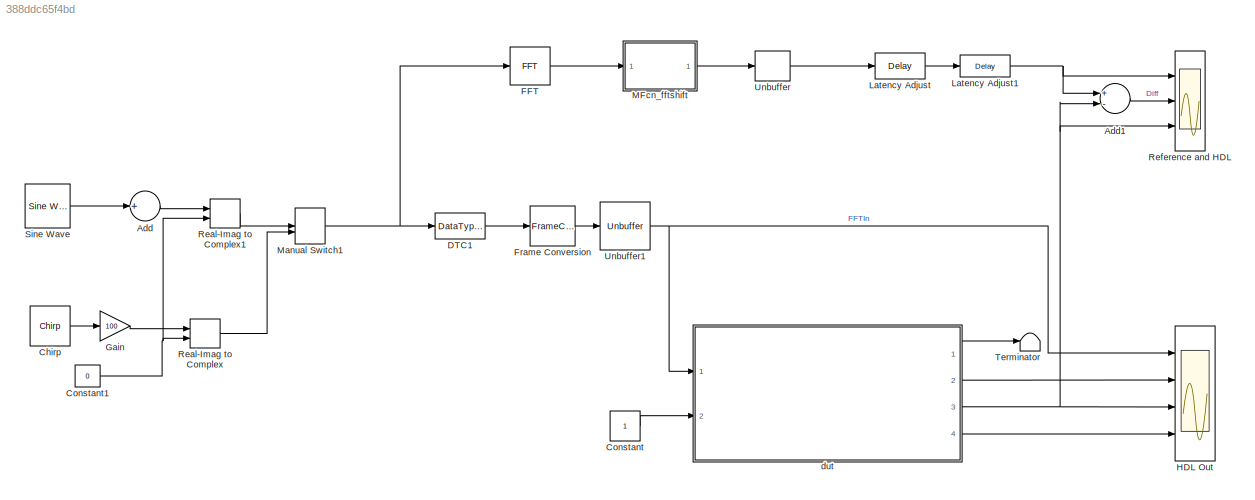
MODEL slx_388ddc65f4bd
KIND model
CONFIG AbsTol = auto
CONFIG FixedStep = auto
CONFIG MaxStep = auto
CONFIG MinStep = auto
CONFIG PreLoadFcn = paramFFTShift
CONFIG RelTol = 1e-3
CONFIG SampleTimeConstraint = Unconstrained
CONFIG Solver = FixedStepDiscrete
CONFIG SolverMode = SingleTasking
CONFIG SolverName = FixedStepDiscrete
CONFIG StartTime = 0.0
CONFIG StopTime = simTime
BLOCK [Sum] Add
  CollapseDim = 2
  CollapseMode = Specified dimension
  InputSameDT = off
  Inputs = +
  OutDataTypeStr = Inherit: Inherit via internal rule
  Ports = [1, 1]
  SaturateOnIntegerOverflow = off
BLOCK [Sum] Add1
  InputSameDT = off
  Inputs = +-
  OutDataTypeStr = Inherit: Inherit via internal rule
  Ports = [2, 1]
  SaturateOnIntegerOverflow = off
BLOCK [Reference] Chirp  REF=dspsrcs4/Chirp
  Ports = [0, 1]
  SourceBlock = dspsrcs4/Chirp
  SourceType = Chirp
BLOCK [Constant] Constant
  OutDataTypeStr = boolean
  SampleTime = 1/sr
BLOCK [Constant] Constant1
  OutDataTypeStr = Inherit: Inherit via back propagation
  SampleTime = -1
  Value = 0
BLOCK [DataTypeConversion] DTC1
  OutDataTypeStr = fixdt(1,16,2)
  RndMeth = Nearest
BLOCK [Reference] FFT  REF=dspxfrm3/FFT
  Ports = [1, 1]
  SourceBlock = dspxfrm3/FFT
  SourceType = FFT
BLOCK [FrameConversion] Frame Conversion
  InheritSamplingMode = off
  Ports = [1, 1]
BLOCK [Gain] Gain
  Gain = 100
  OutDataTypeStr = Inherit: Inherit via internal rule
  ParamDataTypeStr = Inherit: Inherit via internal rule
  SaturateOnIntegerOverflow = off
BLOCK [Scope] HDL Out
  DefaultConfigurationName = spbscopes.TimeScopeBlockCfg
  NumInputPorts = 4
  Ports = [4]
  ScopeSpecificationString = spbscopes.TimeScopeBlockCfg('CurrentConfiguration', extmgr.ConfigurationSet(extmgr.Configuration('Core','General UI',true),extmgr.Configuration('Core','Source UI',true),extmgr.Configuration('Sources','WiredSimulink',true,'PointsPerSignal',50000),extmgr.Configuration('Visuals','Time Domain',true,'DisplayLayoutDimensions',[4 1],'DisplayPropertyDefaults',struct('YLabelReal','Amplitude','AxesColor',[0...<+3571ch>
  UserDataPersistent = on
BLOCK [Delay] Latency Adjust
  DelayLength = fftLatency
  InputPortMap = u0
  Ports = [1, 1]
BLOCK [Delay] Latency Adjust1
  DelayLength = N/2+2
  InputPortMap = u0
  Ports = [1, 1]
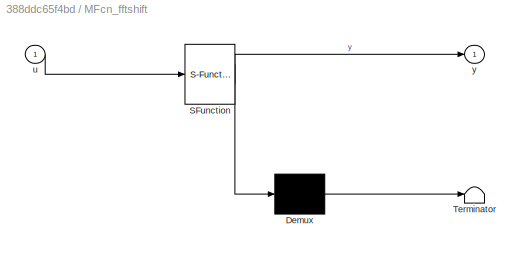
BLOCK [SubSystem] MFcn_fftshift
  ErrorFcn = Stateflow.Translate.translate
  PermitHierarchicalResolution = ExplicitOnly
  Ports = [1, 1]
  RequestExecContextInheritance = off
  SFBlockType = MATLAB Function
  TreatAsAtomicUnit = on
  Variant = off
BLOCK [Demux] MFcn_fftshift/ Demux 
  Outputs = 1
  Ports = [1, 1]
BLOCK [S-Function] MFcn_fftshift/ SFunction 
  EnableBusSupport = on
  FunctionName = sf_sfun
  PortCounts = [1 2]
  Ports = [1, 2]
  SFunctionDeploymentMode = off
  Tag = Stateflow S-Function sla_FFT 6
BLOCK [Terminator] MFcn_fftshift/ Terminator 
BLOCK [Inport] MFcn_fftshift/u
  IconDisplay = Port number
BLOCK [Outport] MFcn_fftshift/y
  IconDisplay = Port number
BLOCK [ManualSwitch] Manual Switch1
BLOCK [RealImagToComplex] Real-Imag to Complex
  Ports = [2, 1]
BLOCK [RealImagToComplex] Real-Imag to Complex1
  Ports = [2, 1]
BLOCK [Scope] Reference and HDL
  DefaultConfigurationName = spbscopes.TimeScopeBlockCfg
  NumInputPorts = 3
  Ports = [3]
  ScopeSpecificationString = spbscopes.TimeScopeBlockCfg('CurrentConfiguration', extmgr.ConfigurationSet(extmgr.Configuration('Core','General UI',true),extmgr.Configuration('Core','Source UI',true),extmgr.Configuration('Sources','WiredSimulink',true,'PointsPerSignal',500000,'DataLoggingVariableName','ScopeData1'),extmgr.Configuration('Visuals','Time Domain',true,'DisplayLayoutDimensions',[3 1],'DisplayPropertyDefaults',struct...<+2915ch>
  UserDataPersistent = on
BLOCK [Reference] Sine Wave  REF=dspsrcs4/Sine Wave
  Ports = [0, 1]
  SourceBlock = dspsrcs4/Sine Wave
  SourceType = Sine Wave
BLOCK [Terminator] Terminator
BLOCK [Unbuffer] Unbuffer
  Ports = [1, 1]
  SampleBasedProcessing = Same as frame based
BLOCK [Unbuffer] Unbuffer1
  Ports = [1, 1]
  SampleBasedProcessing = Same as frame based
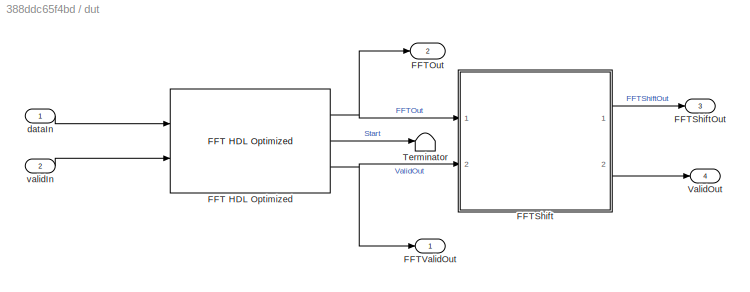
BLOCK [SubSystem] dut
  Ports = [2, 4]
  RequestExecContextInheritance = off
  Variant = off
BLOCK [Reference] dut/FFT HDL Optimized  REF=dspxfrm3/FFT
HDL Optimized
  Ports = [2, 3]
  SourceBlock = dspxfrm3/FFT\nHDL Optimized
  SourceType = FFT HDL Optimized
BLOCK [Outport] dut/FFTOut
  IconDisplay = Port number
  Port = 2
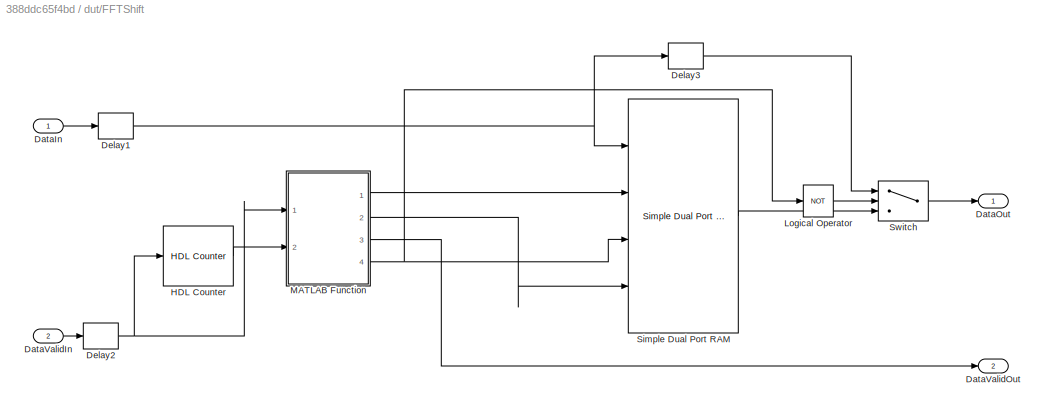
BLOCK [SubSystem] dut/FFTShift
  Ports = [2, 2]
  RequestExecContextInheritance = off
  Variant = off
BLOCK [Inport] dut/FFTShift/DataIn
  IconDisplay = Port number
BLOCK [Outport] dut/FFTShift/DataOut
  IconDisplay = Port number
BLOCK [Inport] dut/FFTShift/DataValidIn
  IconDisplay = Port number
  Port = 2
BLOCK [Outport] dut/FFTShift/DataValidOut
  IconDisplay = Port number
  Port = 2
BLOCK [Delay] dut/FFTShift/Delay1
  DelayLength = 1
  InputPortMap = u0
  Ports = [1, 1]
BLOCK [Delay] dut/FFTShift/Delay2
  DelayLength = 1
  InputPortMap = u0
  Ports = [1, 1]
BLOCK [Delay] dut/FFTShift/Delay3
  DelayLength = 1
  InputPortMap = u0
  Ports = [1, 1]
BLOCK [Reference] dut/FFTShift/HDL Counter  REF=hdlsllib/HDL Operations/HDL Counter
  Ports = [1, 1]
  SourceBlock = hdlsllib/HDL Operations/HDL Counter
  SourceType = HDL Counter
BLOCK [Logic] dut/FFTShift/Logical Operator
  AllPortsSameDT = off
  Operator = NOT
  OutDataTypeStr = boolean
  Ports = [1, 1]
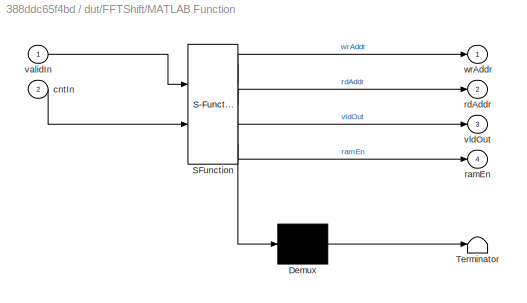
BLOCK [SubSystem] dut/FFTShift/MATLAB Function
  ErrorFcn = Stateflow.Translate.translate
  PermitHierarchicalResolution = ExplicitOnly
  Ports = [2, 4]
  RequestExecContextInheritance = off
  SFBlockType = MATLAB Function
  TreatAsAtomicUnit = on
  Variant = off
BLOCK [Demux] dut/FFTShift/MATLAB Function/ Demux 
  Outputs = 1
  Ports = [1, 1]
BLOCK [S-Function] dut/FFTShift/MATLAB Function/ SFunction 
  EnableBusSupport = on
  FunctionName = sf_sfun
  Parameters = addrOffst,addrWidth,countMax,countMax2
  PortCounts = [2 5]
  Ports = [2, 5]
  SFunctionDeploymentMode = off
  Tag = Stateflow S-Function sla_FFT 2
BLOCK [Terminator] dut/FFTShift/MATLAB Function/ Terminator 
BLOCK [Inport] dut/FFTShift/MATLAB Function/cntIn
  IconDisplay = Port number
  Port = 2
BLOCK [Outport] dut/FFTShift/MATLAB Function/ramEn
  IconDisplay = Port number
  Port = 4
BLOCK [Outport] dut/FFTShift/MATLAB Function/rdAddr
  IconDisplay = Port number
  Port = 2
BLOCK [Inport] dut/FFTShift/MATLAB Function/validIn
  IconDisplay = Port number
BLOCK [Outport] dut/FFTShift/MATLAB Function/vldOut
  IconDisplay = Port number
  Port = 3
BLOCK [Outport] dut/FFTShift/MATLAB Function/wrAddr
  IconDisplay = Port number
BLOCK [Reference] dut/FFTShift/Simple Dual Port RAM  REF=hdlsllib/HDL Operations/Simple Dual Port RAM
  Ports = [4, 1]
  SourceBlock = hdlsllib/HDL Operations/Simple Dual Port RAM
  SourceType = Simple Dual-port RAM
BLOCK [Switch] dut/FFTShift/Switch
  Criteria = u2 ~= 0
  InputSameDT = off
  SaturateOnIntegerOverflow = off
BLOCK [Outport] dut/FFTShiftOut
  IconDisplay = Port number
  Port = 3
BLOCK [Outport] dut/FFTValidOut
  IconDisplay = Port number
BLOCK [Terminator] dut/Terminator
BLOCK [Outport] dut/ValidOut
  IconDisplay = Port number
  Port = 4
BLOCK [Inport] dut/dataIn
  IconDisplay = Port number
BLOCK [Inport] dut/validIn
  IconDisplay = Port number
  Port = 2
LINE Add1:1 -> Reference and HDL:2
LINE Add:1 -> Real-Imag to Complex1:1
LINE Chirp:1 -> Gain:1
NET Constant1:1 -> Real-Imag to Complex1:2, Real-Imag to Complex:2
LINE Constant:1 -> dut:2
LINE DTC1:1 -> Frame Conversion:1
LINE FFT:1 -> MFcn_fftshift:1
LINE Frame Conversion:1 -> Unbuffer1:1
LINE Gain:1 -> Real-Imag to Complex:1
NET Latency Adjust1:1 -> Add1:1, Reference and HDL:1
LINE Latency Adjust:1 -> Latency Adjust1:1
LINE MFcn_fftshift:1 -> Unbuffer:1
NET Manual Switch1:1 -> DTC1:1, FFT:1
LINE Real-Imag to Complex1:1 -> Manual Switch1:1
LINE Real-Imag to Complex:1 -> Manual Switch1:2
LINE Sine Wave:1 -> Add:1
NET Unbuffer1:1 -> HDL Out:1, dut:1
LINE Unbuffer:1 -> Latency Adjust:1
NET dut/FFT HDL Optimized:1 -> dut/FFTOut:1, dut/FFTShift:1
LINE dut/FFT HDL Optimized:2 -> dut/Terminator:1
NET dut/FFT HDL Optimized:3 -> dut/FFTShift:2, dut/FFTValidOut:1
LINE dut/FFTShift/DataIn:1 -> dut/FFTShift/Delay1:1
LINE dut/FFTShift/DataValidIn:1 -> dut/FFTShift/Delay2:1
NET dut/FFTShift/Delay1:1 -> dut/FFTShift/Delay3:1, dut/FFTShift/Simple Dual Port RAM:1
NET dut/FFTShift/Delay2:1 -> dut/FFTShift/HDL Counter:1, dut/FFTShift/MATLAB Function:1
LINE dut/FFTShift/Delay3:1 -> dut/FFTShift/Switch:1
LINE dut/FFTShift/HDL Counter:1 -> dut/FFTShift/MATLAB Function:2
LINE dut/FFTShift/Logical Operator:1 -> dut/FFTShift/Switch:2
LINE dut/FFTShift/MATLAB Function:1 -> dut/FFTShift/Simple Dual Port RAM:2
LINE dut/FFTShift/MATLAB Function:2 -> dut/FFTShift/Simple Dual Port RAM:4
LINE dut/FFTShift/MATLAB Function:3 -> dut/FFTShift/DataValidOut:1
NET dut/FFTShift/MATLAB Function:4 -> dut/FFTShift/Logical Operator:1, dut/FFTShift/Simple Dual Port RAM:3
LINE dut/FFTShift/Simple Dual Port RAM:1 -> dut/FFTShift/Switch:3
LINE dut/FFTShift/Switch:1 -> dut/FFTShift/DataOut:1
LINE dut/FFTShift:1 -> dut/FFTShiftOut:1
LINE dut/FFTShift:2 -> dut/ValidOut:1
LINE dut/dataIn:1 -> dut/FFT HDL Optimized:1
LINE dut/validIn:1 -> dut/FFT HDL Optimized:2
LINE dut:1 -> Terminator:1
LINE dut:2 -> HDL Out:2
NET dut:3 -> Add1:2, HDL Out:3, Reference and HDL:3
LINE dut:4 -> HDL Out:4
note: NET lines group one-source signal fan-out (src -> all destinations, sorted); 1:1 wires keep LINE
CHART dut/FFTShift/MATLAB Function states=1 transitions=1
  STATE_LABEL 'eML_blk_kernel()'
  STATE_LABEL 'SCRIPT:\nfunction [wrAddr, rdAddr, vldOut, ramEn] = fcn(validIn, cntIn, addrWidth, countMax, countMax2, addrOffst)\n%#codegen\n\npersistent wrAddrCnt rdAddrCnt vldOutReg wrEnReg\n\nif isempty(wrAddrCnt)\n    wrAddrCnt      = fi(0, 0, addrWidth, 0);\n    rdAddrCnt      = fi(addrOffst, 0, addrWidth, 0);\n    wrEnReg     = true;\n    vldOutReg   = false;\nend\n\nvldOut = vldOutReg;\nwrAddr = wrAddrCnt;\nrdAddr = rd...<+665ch>'
CHART MFcn_fftshift states=1 transitions=1
  STATE_LABEL 'eML_blk_kernel()'
  STATE_LABEL 'SCRIPT:\nfunction y = fcn(u)\n%#codegen\n\ny = fftshift(u) ;\n\n% y = u;'
